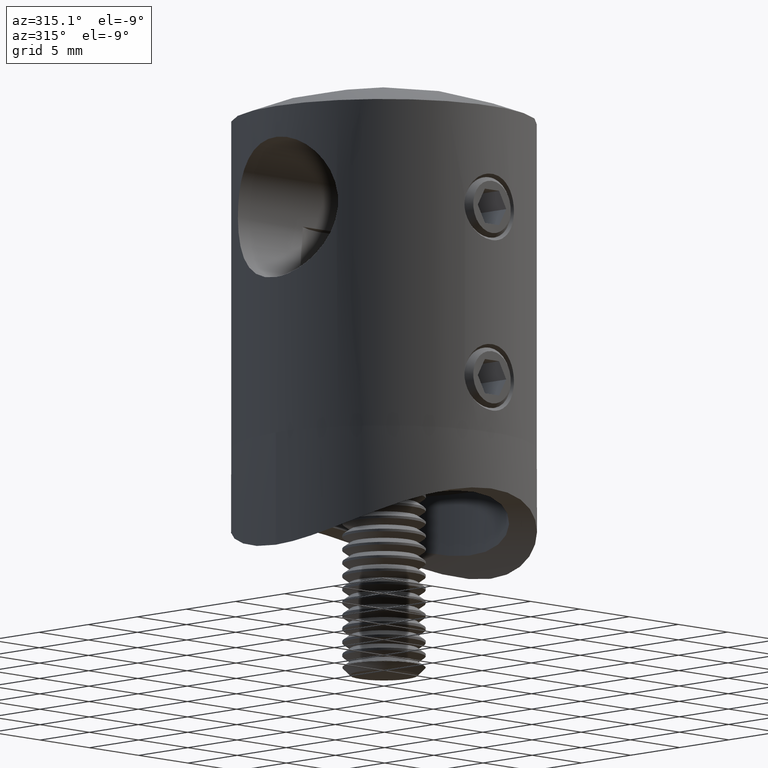
[diagram: clean part render]
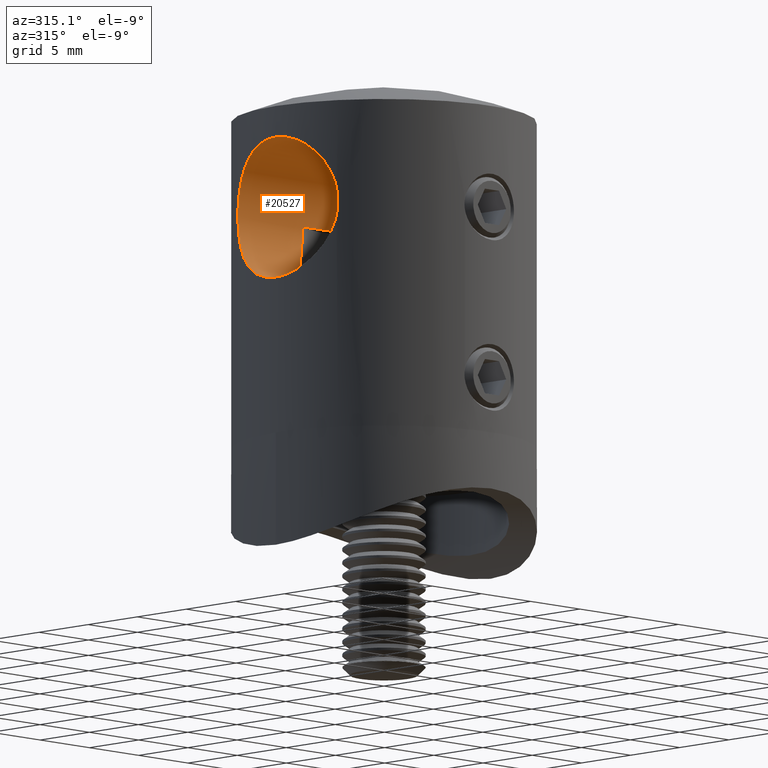
[diagram: same view with one face highlighted and labeled with its STEP entity id]
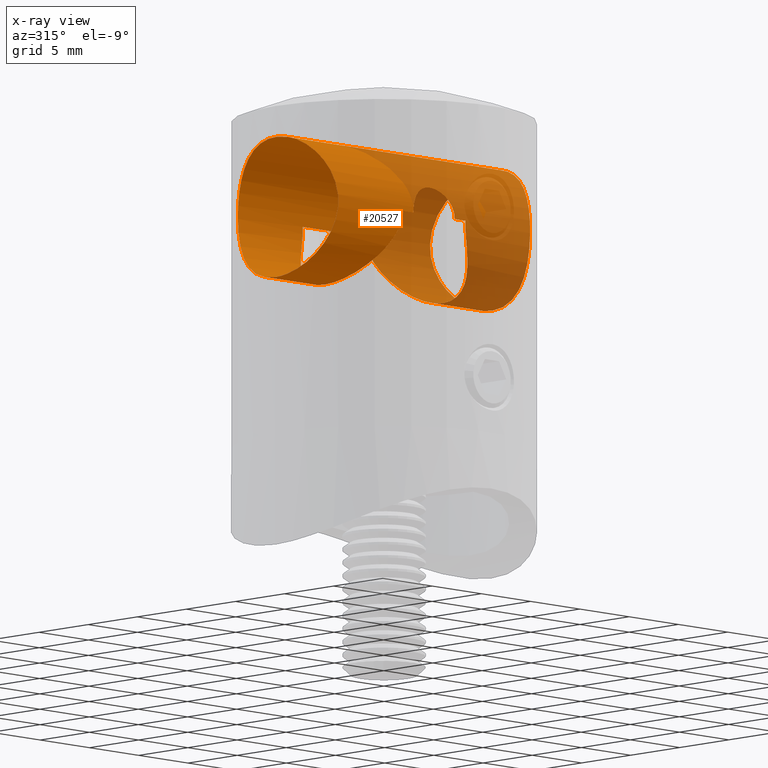
[diagram: x-ray of the same camera — body ghosted, the highlighted face saturated]
A machine part, auxiliary view. The second image highlights one B-rep face of the part: STEP entity #20527.
The next image is the same camera in x-ray: the body ghosted, the highlighted face saturated — about 45% of this face is hidden behind the body in this view.
In plain terms, the highlighted cylindrical surface (bore or boss wall) has radius 5.1 mm, axis along (1, 0, 0).
Its self-contained STEP definition (entity closure, byte-faithful):
#35 = CARTESIAN_POINT ( 'NONE',  ( -10.99999999999999600, 1.897353801849632800E-016, 11.29999999999999900 ) ) ;
#37 = CARTESIAN_POINT ( 'NONE',  ( 10.00436061697043800, -4.575241178648823000, 14.12254123351116800 ) ) ;
#113 = CARTESIAN_POINT ( 'NONE',  ( -9.746609327651651000, 5.099373206684540500, 16.05260251348449400 ) ) ;
#191 = CARTESIAN_POINT ( 'NONE',  ( 10.92358240342935700, -1.335907363905573600, 11.46663083745702500 ) ) ;
#342 = CARTESIAN_POINT ( 'NONE',  ( -10.69790093024884900, 2.576078500588504300, 20.81407917215977200 ) ) ;
#344 = CARTESIAN_POINT ( 'NONE',  ( 10.55128804721513100, 3.122534710036636100, 12.35424311392541900 ) ) ;
#419 = CARTESIAN_POINT ( 'NONE',  ( -10.47336877759368400, -3.371864480480711200, 20.24047110347593300 ) ) ;
#421 = CARTESIAN_POINT ( 'NONE',  ( 10.31158215273080500, 3.838254438372356200, 19.77438753519447800 ) ) ;
#491 = CARTESIAN_POINT ( 'NONE',  ( -9.763479344190180600, -5.067548827356644900, 15.73283853468677900 ) ) ;
#528 = CARTESIAN_POINT ( 'NONE',  ( -0.5499645270193673800, -4.678043745141827100, 18.43145284121799300 ) ) ;
#535 = FACE_OUTER_BOUND ( 'NONE', #658, .T. ) ;
#564 = CARTESIAN_POINT ( 'NONE',  ( -10.07469812271536100, -4.420400662356025900, 13.83512119538369900 ) ) ;
#567 = CARTESIAN_POINT ( 'NONE',  ( 10.07469812271536800, 4.420400662356026800, 13.83512119538370500 ) ) ;
#647 = CARTESIAN_POINT ( 'NONE',  ( 10.70022606909253500, 2.566238421094041200, 20.81964023380006900 ) ) ;
#658 = EDGE_LOOP ( 'NONE', ( #16135 ) ) ;
#680 = CARTESIAN_POINT ( 'NONE',  ( -1.057273844684883900, -4.765066672476101500, 18.21951307096723100 ) ) ;
#829 = CARTESIAN_POINT ( 'NONE',  ( -0.9353544019367214800, -4.739117432188014500, 18.28521745748624400 ) ) ;
#944 = CARTESIAN_POINT ( 'NONE',  ( -3.437899923984606400, -4.919077726535473300, 15.00999836244040100 ) ) ;
#1080 = CARTESIAN_POINT ( 'NONE',  ( 5.526712704781847000, -2.359354324370696300, 11.86563484534943500 ) ) ;
#1156 = CARTESIAN_POINT ( 'NONE',  ( 3.160696125855821500, 5.100000000000001400, 16.39999999999999900 ) ) ;
#1227 = CARTESIAN_POINT ( 'NONE',  ( 5.750816287354224300, 1.743401258066523000, 11.59501410306202000 ) ) ;
#1296 = CARTESIAN_POINT ( 'NONE',  ( 5.961137178804953900, -0.7048313270236067400, 11.34576889506183600 ) ) ;
#1368 = CARTESIAN_POINT ( 'NONE',  ( -3.236073373752399900, 5.052629025252485000, 15.68421491420723000 ) ) ;
#1547 = CARTESIAN_POINT ( 'NONE',  ( 2.099999999999993400, -5.100000000000001400, 16.39999999999999900 ) ) ;
#1775 = CARTESIAN_POINT ( 'NONE',  ( 10.98409477427311900, -0.6774680798639226600, 11.33405321981837200 ) ) ;
#1836 = CARTESIAN_POINT ( 'NONE',  ( -9.885833756099657400, 4.824245512483266800, 14.73718638957849000 ) ) ;
#1908 = CARTESIAN_POINT ( 'NONE',  ( 10.76607921010692700, -2.278039284623406800, 11.82485560310605500 ) ) ;
#1990 = CARTESIAN_POINT ( 'NONE',  ( -10.98461965845903200, -0.6696594642287685400, 21.46708344749502100 ) ) ;
#2063 = CARTESIAN_POINT ( 'NONE',  ( -10.07530021768211400, 4.419092927928359100, 13.83261717824195000 ) ) ;
#2065 = CARTESIAN_POINT ( 'NONE',  ( 11.00031598307091900, 0.3266202780843043800, 21.50068153325095100 ) ) ;
#2133 = CARTESIAN_POINT ( 'NONE',  ( -9.745983956010393400, -5.100568316517894600, 16.07184845647866600 ) ) ;
#2135 = CARTESIAN_POINT ( 'NONE',  ( 10.47336877759368300, 3.371864480480710300, 20.24047110347592900 ) ) ;
#2211 = CARTESIAN_POINT ( 'NONE',  ( -9.782123209470828600, -5.031053208532882500, 17.25264343705779500 ) ) ;
#2250 = CARTESIAN_POINT ( 'NONE',  ( 2.099999999999997400, -5.100000000000001400, 16.53877706391702400 ) ) ;
#2265 = DIRECTION ( 'NONE',  ( 0.0000000000000000000, 0.0000000000000000000, -1.000000000000000000 ) ) ;
#2287 = CARTESIAN_POINT ( 'NONE',  ( -10.55128804721514000, -3.122534710036641400, 12.35424311392542600 ) ) ;
#2427 = CARTESIAN_POINT ( 'NONE',  ( -10.76247523156004800, -2.278529707840948800, 11.83425253284901800 ) ) ;
#2578 = CARTESIAN_POINT ( 'NONE',  ( -3.160696125855821500, -5.100000000000001400, 16.39999999999999900 ) ) ;
#2727 = CARTESIAN_POINT ( 'NONE',  ( -5.961137178804953900, 0.7048313270236067400, 11.34576889506183600 ) ) ;
#2744 = B_SPLINE_CURVE_WITH_KNOTS ( 'NONE', 3,
 ( #5255, #13844, #1775, #191, #3627, #1908, #15564, #15348, #5109, #13775, #17007, #22161, #37, #15416, #5323, #5190, #18853, #13918, #20565, #3553, #17301, #8760, #20725, #18700, #8465, #19144, #10615, #17668, #12262, #7427, #3919, #5627, #8838, #3694, #9055, #21033, #15875, #2065, #10769, #15795, #3850, #19365, #647, #10840, #2135, #421, #7355, #8916, #5483, #20877, #3989, #19215, #17373, #15641, #12343, #14063, #5404, #5554, #19290, #12559, #567, #17530, #5709, #13996, #344, #21099, #15950, #7273, #3768, #15715, #8990, #20955, #9139, #12489 ),
 .UNSPECIFIED., .T., .F.,
 ( 4, 2, 2, 2, 2, 2, 2, 2, 2, 2, 2, 2, 2, 2, 2, 2, 2, 2, 2, 2, 2, 2, 2, 2, 2, 2, 2, 2, 2, 2, 2, 2, 2, 2, 2, 2, 4 ),
 ( 0.0000000000000000000, 0.001010597652588617900, 0.002021195305177235400, 0.003031792957765852900, 0.004042390610354470000, 0.005052988262943087000, 0.006063585915531705800, 0.006568884741826014300, 0.007074183568120321100, 0.008084781220708941700, 0.008590080047003246700, 0.009095378873297553500, 0.01010597652588616200, 0.01111657417847477400, 0.01212717183106338400, 0.01313776948365199600, 0.01414836713624060600, 0.01515896478882921400, 0.01616956244141782400, 0.01718016009400643800, 0.01819075774659504800, 0.01920135539918365800, 0.02021195305177226800, 0.02122255070436087800, 0.02223314835694948900, 0.02324374600953810200, 0.02374904483583240700, 0.02425434366212671200, 0.02526494131471532200, 0.02627553896730392600, 0.02728613661989253200, 0.02829673427248113200, 0.02930733192506973500, 0.02981263075136404000, 0.03031792957765834200, 0.03132852723024694800, 0.03233912488283555800 ),
 .UNSPECIFIED. ) ;
#2792 = CARTESIAN_POINT ( 'NONE',  ( 4.072506689530409400, -4.413100678718776300, 13.82454396794957000 ) ) ;
#2928 = CARTESIAN_POINT ( 'NONE',  ( -4.930883832659188400, 3.429680394446590800, 12.61241110340417000 ) ) ;
#3006 = CARTESIAN_POINT ( 'NONE',  ( 4.420797845977277000, -4.064149940858574600, 13.30304720220789800 ) ) ;
#3473 = CARTESIAN_POINT ( 'NONE',  ( -10.98409477427311600, 0.6774680798639229900, 11.33405321981837200 ) ) ;
#3551 = CARTESIAN_POINT ( 'NONE',  ( -9.913515838807221300, 4.767307365066429300, 14.58060640433452400 ) ) ;
#3553 = CARTESIAN_POINT ( 'NONE',  ( 9.746124043521531300, -5.100300603888076300, 16.55970841759690500 ) ) ;
#3624 = CARTESIAN_POINT ( 'NONE',  ( -10.47088620841679000, 3.379449766977663300, 20.23365674153711100 ) ) ;
#3627 = CARTESIAN_POINT ( 'NONE',  ( 10.87817437663434800, -1.662301648955468900, 11.56697170889746400 ) ) ;
#3692 = CARTESIAN_POINT ( 'NONE',  ( -9.831210612696358100, 4.934853384125918100, 17.73043615380184000 ) ) ;
#3694 = CARTESIAN_POINT ( 'NONE',  ( 10.87691252494812000, -1.670145597579503900, 21.23017820595980300 ) ) ;
#3698 = DIRECTION ( 'NONE',  ( -1.000000000000000000, 0.0000000000000000000, 0.0000000000000000000 ) ) ;
#3768 = CARTESIAN_POINT ( 'NONE',  ( 10.79372047998855600, 2.126081526392296100, 11.76127184379781300 ) ) ;
#3848 = CARTESIAN_POINT ( 'NONE',  ( -9.750955816283152400, -5.091093399825953500, 16.74569809806016000 ) ) ;
#3850 = CARTESIAN_POINT ( 'NONE',  ( 10.87989800168600500, 1.651396176960097800, 21.23691135796434500 ) ) ;
#3919 = CARTESIAN_POINT ( 'NONE',  ( 10.55011019610968500, -3.126729857943598500, 20.44275101567398400 ) ) ;
#3951 = CARTESIAN_POINT ( 'NONE',  ( -1.282894273576390000, -4.820150425833494600, 18.06812412035203900 ) ) ;
#3987 = CARTESIAN_POINT ( 'NONE',  ( -10.98362801482573100, -0.6851161954445393900, 11.33505918355280800 ) ) ;
#3989 = CARTESIAN_POINT ( 'NONE',  ( 9.833678025644266200, 4.929959429588495600, 17.74888431453495100 ) ) ;
#4033 = EDGE_CURVE ( 'NONE', #4950, #19914, #18998, .T. ) ;
#4057 = VERTEX_POINT ( 'NONE', #16353 ) ;
#4248 = CARTESIAN_POINT ( 'NONE',  ( 1.883934411382665500, -5.014655641459837600, 17.33809115779621000 ) ) ;
#4287 = CARTESIAN_POINT ( 'NONE',  ( -3.224345162553830000, -5.061628180708900100, 15.68631211838138200 ) ) ;
#4566 = CARTESIAN_POINT ( 'NONE',  ( 5.094334937987475200, -3.184645687778531200, 12.40313220269684200 ) ) ;
#4568 = CARTESIAN_POINT ( 'NONE',  ( -3.160696125855820600, 5.100000000000000500, 16.21838618592478600 ) ) ;
#4612 = EDGE_CURVE ( 'NONE', #15043, #11993, #18530, .T. ) ;
#4643 = CARTESIAN_POINT ( 'NONE',  ( 3.662736925341414800, -4.753370674297174000, 14.54497055375999000 ) ) ;
#4646 = CARTESIAN_POINT ( 'NONE',  ( -3.899298338505512900, 4.564665450330344300, 14.10293722739147500 ) ) ;
#4716 = CARTESIAN_POINT ( 'NONE',  ( 3.279023719471608500, -5.025144788923042500, 15.51269972870959700 ) ) ;
#4718 = CARTESIAN_POINT ( 'NONE',  ( -5.935100455611847200, -0.8973519367980685700, 11.37647445812125600 ) ) ;
#4776 = FACE_OUTER_BOUND ( 'NONE', #19343, .T. ) ;
#4784 = CARTESIAN_POINT ( 'NONE',  ( 6.007905056298978000, 0.007331184701876530100, 11.29070721246142900 ) ) ;
#4950 = VERTEX_POINT ( 'NONE', #9027 ) ;
#4985 = ORIENTED_EDGE ( 'NONE', *, *, #14041, .F. ) ;
#5107 = CARTESIAN_POINT ( 'NONE',  ( -10.47192994644006200, 3.376204713791207900, 12.56352283884599100 ) ) ;
#5109 = CARTESIAN_POINT ( 'NONE',  ( 10.47192994644006200, -3.376204713791206100, 12.56352283884598900 ) ) ;
#5186 = CARTESIAN_POINT ( 'NONE',  ( -10.30987621817060400, 3.842732241926132300, 19.76912654204614500 ) ) ;
#5190 = CARTESIAN_POINT ( 'NONE',  ( 9.836864287762125500, -4.923327614744372300, 15.05868010317692600 ) ) ;
#5202 = ORIENTED_EDGE ( 'NONE', *, *, #14855, .F. ) ;
#5255 = CARTESIAN_POINT ( 'NONE',  ( 11.00000000000000000, -1.084202172485504400E-016, 11.29999999999999900 ) ) ;
#5321 = CARTESIAN_POINT ( 'NONE',  ( -10.87691252494811600, 1.670145597579503200, 21.23017820595980600 ) ) ;
#5323 = CARTESIAN_POINT ( 'NONE',  ( 9.885833756099659200, -4.824245512483267700, 14.73718638957849000 ) ) ;
#5404 = CARTESIAN_POINT ( 'NONE',  ( 9.763479344190173500, 5.067548827356644900, 15.73283853468677900 ) ) ;
#5483 = CARTESIAN_POINT ( 'NONE',  ( 10.00459041982638700, 4.574747880705968100, 18.67853826946136000 ) ) ;
#5552 = CARTESIAN_POINT ( 'NONE',  ( -10.79372047998855100, -2.126081526392301400, 11.76127184379781600 ) ) ;
#5554 = CARTESIAN_POINT ( 'NONE',  ( 9.831401816782660700, 4.934482580680001900, 15.06731954339826500 ) ) ;
#5586 = CARTESIAN_POINT ( 'NONE',  ( -1.819250232706703900, -4.990455248181885600, 17.45772812533541100 ) ) ;
#5627 = CARTESIAN_POINT ( 'NONE',  ( 10.69790093024885600, -2.576078500588502500, 20.81407917215978300 ) ) ;
#5657 = VECTOR ( 'NONE', #10866, 1000.000000000000000 ) ;
#5669 = CARTESIAN_POINT ( 'NONE',  ( 1.387084436713889700, -4.849290995718870800, 17.98253608266233500 ) ) ;
#5709 = CARTESIAN_POINT ( 'NONE',  ( 10.30907895527403500, 3.845060912577607400, 13.03314621997213000 ) ) ;
#5780 = CARTESIAN_POINT ( 'NONE',  ( -10.76752374769291600, -2.271502190894517900, 20.97854765344256100 ) ) ;
#5781 = CARTESIAN_POINT ( 'NONE',  ( -4.589665673809800900, -3.874484500163802200, 13.06871005281209900 ) ) ;
#5886 = CARTESIAN_POINT ( 'NONE',  ( -2.085936282127814700, -5.094163894485191700, 16.67929288906941600 ) ) ;
#5973 = CARTESIAN_POINT ( 'NONE',  ( 11.00000000000000000, 0.0000000000000000000, 11.29999999999999700 ) ) ;
#6142 = CARTESIAN_POINT ( 'NONE',  ( -5.959378708157824900, -0.7195634073048298200, 11.34784246777162200 ) ) ;
#6214 = CARTESIAN_POINT ( 'NONE',  ( -3.587536456729938400, 4.810083889045049700, 14.69690675221483800 ) ) ;
#6351 = CARTESIAN_POINT ( 'NONE',  ( -5.937279120420515500, 0.8828896206105536500, 11.37390155145837900 ) ) ;
#6435 = VERTEX_POINT ( 'NONE', #16450 ) ;
#6750 = CARTESIAN_POINT ( 'NONE',  ( -11.00000000000000000, -5.100000000000001400, 16.39999999999999900 ) ) ;
#6893 = LINE ( 'NONE', #6750, #10356 ) ;
#6895 = CARTESIAN_POINT ( 'NONE',  ( -9.764554807653102100, 5.065479761543580900, 15.71864772819509100 ) ) ;
#7048 = CARTESIAN_POINT ( 'NONE',  ( -10.99967404411871300, 0.3475679165322346200, 21.49929695674811800 ) ) ;
#7120 = CARTESIAN_POINT ( 'NONE',  ( -10.92358240342935500, 1.335907363905573600, 11.46663083745702000 ) ) ;
#7273 = CARTESIAN_POINT ( 'NONE',  ( 10.76247523156004400, 2.278529707840944300, 11.83425253284901400 ) ) ;
#7351 = CARTESIAN_POINT ( 'NONE',  ( -9.768733347336896200, -5.056898271221757400, 17.08302200203814900 ) ) ;
#7355 = CARTESIAN_POINT ( 'NONE',  ( 10.23062083369497800, 4.046496105150160000, 19.52160426523856900 ) ) ;
#7426 = CARTESIAN_POINT ( 'NONE',  ( -10.00222700330179200, -4.579911297734634300, 14.13158646250897700 ) ) ;
#7427 = CARTESIAN_POINT ( 'NONE',  ( 10.47088620841679000, -3.379449766977662900, 20.23365674153711100 ) ) ;
#7456 = CARTESIAN_POINT ( 'NONE',  ( 1.579266909651706500, -4.907718808011222400, 17.79080541974112300 ) ) ;
#7488 = CARTESIAN_POINT ( 'NONE',  ( -10.99999999999999800, -0.3420402686100491000, 11.29999999999999900 ) ) ;
#7489 = CARTESIAN_POINT ( 'NONE',  ( -5.091321507266846100, -3.189219774148147800, 12.40698860909554400 ) ) ;
#7534 = CARTESIAN_POINT ( 'NONE',  ( -1.991049611346070500, -5.055877295416569200, 17.08161594402441700 ) ) ;
#7604 = CARTESIAN_POINT ( 'NONE',  ( -11.00000000000000000, -5.100000000000001400, 16.39999999999999900 ) ) ;
#7611 = CARTESIAN_POINT ( 'NONE',  ( -2.099999999999993400, -5.100000000000001400, 16.39999999999999900 ) ) ;
#7790 = CARTESIAN_POINT ( 'NONE',  ( -3.896672037690059700, -4.566915886893900400, 14.10728764135303600 ) ) ;
#7929 = CARTESIAN_POINT ( 'NONE',  ( 3.896672037690059700, 4.566915886893900400, 14.10728764135303600 ) ) ;
#7931 = CARTESIAN_POINT ( 'NONE',  ( -5.754041743160549100, 1.732659737827856500, 11.59116329903517700 ) ) ;
#8001 = CARTESIAN_POINT ( 'NONE',  ( 5.991650558390248600, 0.3634414265308563700, 11.30981556748035800 ) ) ;
#8081 = CARTESIAN_POINT ( 'NONE',  ( 4.415955492431838700, 4.069282658997688700, 13.31003616340318800 ) ) ;
#8156 = CARTESIAN_POINT ( 'NONE',  ( -4.594853628076902100, 3.868286845074914800, 13.06160305806997900 ) ) ;
#8465 = CARTESIAN_POINT ( 'NONE',  ( 9.880785821988753900, -4.836366772746158600, 18.05286453897976900 ) ) ;
#8534 = CARTESIAN_POINT ( 'NONE',  ( -10.92203846952601900, 1.349500825788746900, 21.32996568247475400 ) ) ;
#8758 = CARTESIAN_POINT ( 'NONE',  ( -9.836864287762120200, 4.923327614744370500, 15.05868010317692900 ) ) ;
#8760 = CARTESIAN_POINT ( 'NONE',  ( 9.767782344364496400, -5.058733202320076400, 17.06944071582966400 ) ) ;
#8779 = LINE ( 'NONE', #13848, #19223 ) ;
#8836 = CARTESIAN_POINT ( 'NONE',  ( -10.31115410062419500, 3.839293709232861000, 13.02699850404312800 ) ) ;
#8838 = CARTESIAN_POINT ( 'NONE',  ( 10.76524624909549400, -2.281684813646024600, 20.97317419629084500 ) ) ;
#8916 = CARTESIAN_POINT ( 'NONE',  ( 10.07729814196231300, 4.414498332747689000, 18.97502395870773400 ) ) ;
#8990 = CARTESIAN_POINT ( 'NONE',  ( 10.92259533598678600, 1.344016255707064300, 11.46881049038183600 ) ) ;
#9020 = CARTESIAN_POINT ( 'NONE',  ( -0.2778367829370683200, -4.653904337052252600, 18.48616115128229600 ) ) ;
#9027 = CARTESIAN_POINT ( 'NONE',  ( -3.160696125855821500, -5.100000000000001400, 16.39999999999999900 ) ) ;
#9053 = CARTESIAN_POINT ( 'NONE',  ( -9.833678025644271500, -4.929959429588498300, 17.74888431453494800 ) ) ;
#9055 = CARTESIAN_POINT ( 'NONE',  ( 10.92203846952602400, -1.349500825788743100, 21.32996568247476800 ) ) ;
#9139 = CARTESIAN_POINT ( 'NONE',  ( 11.00000000000000200, 0.3420402686100437200, 11.29999999999999700 ) ) ;
#9178 = CARTESIAN_POINT ( 'NONE',  ( 2.085895283018009300, -5.094147339973454300, 16.67947763425767600 ) ) ;
#9250 = CARTESIAN_POINT ( 'NONE',  ( 1.282574519783476400, -4.820053978204491300, 18.06841653816547600 ) ) ;
#9626 = CARTESIAN_POINT ( 'NONE',  ( 5.754041743160549100, -1.732659737827856500, 11.59116329903517700 ) ) ;
#9628 = CARTESIAN_POINT ( 'NONE',  ( -5.992521419472591800, 0.3487559336365772000, 11.30879105119112500 ) ) ;
#9640 = VERTEX_POINT ( 'NONE', #5973 ) ;
#9704 = CARTESIAN_POINT ( 'NONE',  ( 5.935100455611847200, 0.8973519367980685700, 11.37647445812125600 ) ) ;
#9781 = CARTESIAN_POINT ( 'NONE',  ( 5.522045992001460000, 2.370304617501131500, 11.87131438089884300 ) ) ;
#9783 = CARTESIAN_POINT ( 'NONE',  ( -4.420797845977277000, 4.064149940858574600, 13.30304720220789800 ) ) ;
#9854 = CARTESIAN_POINT ( 'NONE',  ( -3.279023719471608500, 5.025144788923042500, 15.51269972870959700 ) ) ;
#10142 = CARTESIAN_POINT ( 'NONE',  ( 3.160696125855820600, -5.100000000000000500, 16.21838618592478600 ) ) ;
#10318 = CARTESIAN_POINT ( 'NONE',  ( -9.815636342375487500, 4.965348642925768300, 15.22371585600222100 ) ) ;
#10356 = VECTOR ( 'NONE', #15190, 1000.000000000000000 ) ;
#10546 = CARTESIAN_POINT ( 'NONE',  ( -10.22938670084714000, 4.049654862654770100, 13.28228732040598100 ) ) ;
#10615 = CARTESIAN_POINT ( 'NONE',  ( 10.07413874253476000, -4.421680918401317100, 18.96272170532579100 ) ) ;
#10725 = AXIS2_PLACEMENT_3D ( 'NONE', #19344, #19122, #2265 ) ;
#10766 = CARTESIAN_POINT ( 'NONE',  ( -10.31158215273080500, -3.838254438372356200, 19.77438753519448200 ) ) ;
#10769 = CARTESIAN_POINT ( 'NONE',  ( 10.98461965845903200, 0.6696594642287665400, 21.46708344749500700 ) ) ;
#10803 = CARTESIAN_POINT ( 'NONE',  ( -1.388486849246764400, -4.849682484477904500, 17.98138912493051200 ) ) ;
#10840 = CARTESIAN_POINT ( 'NONE',  ( 10.55378527435345500, 3.114166653605242800, 20.45225437055679100 ) ) ;
#10866 = DIRECTION ( 'NONE',  ( 1.000000000000000000, -0.0000000000000000000, -0.0000000000000000000 ) ) ;
#10872 = CARTESIAN_POINT ( 'NONE',  ( -0.1376236150479603900, -4.647562775263992300, 18.50003815482978500 ) ) ;
#10943 = CARTESIAN_POINT ( 'NONE',  ( -0.6813671313963254300, -4.695594461470578000, 18.39114829972205100 ) ) ;
#11024 = CARTESIAN_POINT ( 'NONE',  ( 0.2769901658140820900, -4.647614604758041800, 18.49992344924319100 ) ) ;
#11131 = CARTESIAN_POINT ( 'NONE',  ( -3.160696125855821500, -5.100000000000000500, 16.03670030206456000 ) ) ;
#11278 = CARTESIAN_POINT ( 'NONE',  ( 5.091321507266846100, 3.189219774148147800, 12.40698860909554400 ) ) ;
#11281 = CARTESIAN_POINT ( 'NONE',  ( -5.392728365209467100, 2.648149806214045400, 12.02916221421408600 ) ) ;
#11351 = CARTESIAN_POINT ( 'NONE',  ( -3.160696125855821500, 5.100000000000001400, 16.39999999999999900 ) ) ;
#11414 = CARTESIAN_POINT ( 'NONE',  ( -3.448880571870624600, 4.910452896524973600, 15.01259739754040400 ) ) ;
#11491 = CARTESIAN_POINT ( 'NONE',  ( 5.992521419472591800, -0.3487559336365772000, 11.30879105119112500 ) ) ;
#11572 = CARTESIAN_POINT ( 'NONE',  ( 4.926986027419904000, 3.435326742096961100, 12.61745416032030000 ) ) ;
#11993 = VERTEX_POINT ( 'NONE', #20039 ) ;
#12032 = CARTESIAN_POINT ( 'NONE',  ( -10.55213191267872700, 3.119896509840596200, 12.35200189701629700 ) ) ;
#12048 = VERTEX_POINT ( 'NONE', #1547 ) ;
#12054 = EDGE_CURVE ( 'NONE', #4057, #4057, #20006, .T. ) ;
#12111 = CARTESIAN_POINT ( 'NONE',  ( -9.750431221126522300, 5.092096281612858100, 16.73088962366718100 ) ) ;
#12183 = CARTESIAN_POINT ( 'NONE',  ( -10.69954747067740900, 2.569226743090020600, 11.98195554385582900 ) ) ;
#12262 = CARTESIAN_POINT ( 'NONE',  ( 10.30987621817060100, -3.842732241926132300, 19.76912654204613400 ) ) ;
#12341 = CARTESIAN_POINT ( 'NONE',  ( -10.23062083369498000, -4.046496105150158200, 19.52160426523857600 ) ) ;
#12343 = CARTESIAN_POINT ( 'NONE',  ( 9.746435882187439500, 5.099704667917422700, 16.57715091522957400 ) ) ;
#12486 = CARTESIAN_POINT ( 'NONE',  ( -9.883215163198309800, -4.831377203079143500, 18.06668807489311500 ) ) ;
#12489 = CARTESIAN_POINT ( 'NONE',  ( 11.00000000000000000, -1.084202172485504400E-016, 11.29999999999999900 ) ) ;
#12559 = CARTESIAN_POINT ( 'NONE',  ( 10.00222700330179600, 4.579911297734634300, 14.13158646250898800 ) ) ;
#12678 = CARTESIAN_POINT ( 'NONE',  ( -2.031277605772814400, -5.072027634239925800, 16.95049612102884900 ) ) ;
#12750 = CARTESIAN_POINT ( 'NONE',  ( -1.581784412795938600, -4.908519776703030900, 17.78803651479905000 ) ) ;
#12854 = CARTESIAN_POINT ( 'NONE',  ( -3.580811593932919900, -4.818564310667141200, 14.69862154080247400 ) ) ;
#12932 = CARTESIAN_POINT ( 'NONE',  ( -4.070385370908269400, -4.414939093832910700, 13.82798703968248900 ) ) ;
#12997 = CARTESIAN_POINT ( 'NONE',  ( 4.594853628076902100, -3.868286845074914800, 13.06160305806997900 ) ) ;
#12999 = CARTESIAN_POINT ( 'NONE',  ( -5.522045992001460000, -2.370304617501131500, 11.87131438089884300 ) ) ;
#13067 = CARTESIAN_POINT ( 'NONE',  ( 5.392728365209467100, -2.648149806214045400, 12.02916221421408600 ) ) ;
#13154 = CARTESIAN_POINT ( 'NONE',  ( -5.841456572235876400, -1.414219495481199500, 11.48734484294548600 ) ) ;
#13228 = CARTESIAN_POINT ( 'NONE',  ( 5.844685562798253500, -1.400985515938927300, 11.48350954739190200 ) ) ;
#13612 = FACE_BOUND ( 'NONE', #19659, .T. ) ;
#13775 = CARTESIAN_POINT ( 'NONE',  ( 10.31115410062419500, -3.839293709232858300, 13.02699850404312400 ) ) ;
#13842 = CARTESIAN_POINT ( 'NONE',  ( -10.07413874253476000, 4.421680918401315300, 18.96272170532579100 ) ) ;
#13844 = CARTESIAN_POINT ( 'NONE',  ( 11.00000000000000000, -0.3420402686100476000, 11.30000000000000100 ) ) ;
#13848 = CARTESIAN_POINT ( 'NONE',  ( -11.00000000000000000, 5.100000000000001400, 16.39999999999999900 ) ) ;
#13916 = CARTESIAN_POINT ( 'NONE',  ( -10.92420653231054900, -1.331174097726975900, 21.33474963736254500 ) ) ;
#13918 = CARTESIAN_POINT ( 'NONE',  ( 9.764554807653103900, -5.065479761543580900, 15.71864772819508700 ) ) ;
#13993 = CARTESIAN_POINT ( 'NONE',  ( -10.00436061697045000, 4.575241178648824700, 14.12254123351117700 ) ) ;
#13996 = CARTESIAN_POINT ( 'NONE',  ( 10.47201491691117100, 3.376167339972384200, 12.56311429802452300 ) ) ;
#14041 = EDGE_CURVE ( 'NONE', #12048, #11993, #6893, .T. ) ;
#14061 = CARTESIAN_POINT ( 'NONE',  ( -9.880766135392452300, -4.836382232452141500, 14.74751872209966700 ) ) ;
#14063 = CARTESIAN_POINT ( 'NONE',  ( 9.745983956010393400, 5.100568316517894600, 16.07184845647866600 ) ) ;
#14172 = CARTESIAN_POINT ( 'NONE',  ( 0.5560579517119971200, -4.674142014470731100, 18.44335116316176500 ) ) ;
#14212 = CARTESIAN_POINT ( 'NONE',  ( -10.69623310193279800, -2.571608090004069900, 11.99266754206867500 ) ) ;
#14248 = CARTESIAN_POINT ( 'NONE',  ( -1.667785240523931700, -4.937254275750055000, 17.68333650607293000 ) ) ;
#14360 = CARTESIAN_POINT ( 'NONE',  ( -9.831401816782660700, -4.934482580680002800, 15.06731954339825900 ) ) ;
#14649 = CARTESIAN_POINT ( 'NONE',  ( -5.844685562798253500, 1.400985515938927300, 11.48350954739190200 ) ) ;
#14797 = CARTESIAN_POINT ( 'NONE',  ( 5.841456572235876400, 1.414219495481199500, 11.48734484294548600 ) ) ;
#14855 = EDGE_CURVE ( 'NONE', #9640, #9640, #2744, .T. ) ;
#14872 = CARTESIAN_POINT ( 'NONE',  ( 3.899298338505512900, -4.564665450330344300, 14.10293722739147500 ) ) ;
#14944 = CARTESIAN_POINT ( 'NONE',  ( 3.385219306525883500, -4.954227179815460700, 15.17729195150674400 ) ) ;
#15021 = CARTESIAN_POINT ( 'NONE',  ( 4.070385370908269400, 4.414939093832910700, 13.82798703968248900 ) ) ;
#15043 = VERTEX_POINT ( 'NONE', #19585 ) ;
#15059 = EDGE_CURVE ( 'NONE', #4950, #6435, #15324, .T. ) ;
#15190 = DIRECTION ( 'NONE',  ( 1.000000000000000000, -0.0000000000000000000, -0.0000000000000000000 ) ) ;
#15324 = B_SPLINE_CURVE_WITH_KNOTS ( 'NONE', 3,
 ( #2578, #11131, #4287, #944, #12854, #7790, #12932, #16014, #5781, #17749, #7489, #16385, #12999, #20097, #13154, #4718, #6142, #18159, #20016, #9628, #2727, #6351, #14649, #7931, #16598, #11281, #21675, #2928, #8156, #9783, #21538, #4646, #18239, #6214, #11414, #19871, #9854, #1368, #16519, #4568, #11351 ),
 .UNSPECIFIED., .F., .F.,
 ( 4, 2, 2, 2, 2, 2, 2, 2, 2, 1, 2, 2, 2, 2, 2, 2, 2, 2, 2, 2, 4 ),
 ( 0.0000000000000000000, 0.001071220141085162500, 0.002142440282170325100, 0.003213660423255487200, 0.004284880564340650200, 0.005356100705425813200, 0.006427320846510976200, 0.007498540987596139100, 0.008034151058138721100, 0.008569761128681303900, 0.009105371199223884900, 0.009640981269766464200, 0.01071220141085162800, 0.01178342155193679200, 0.01285464169302195600, 0.01392586183410712100, 0.01499708197519228500, 0.01553269204573486800, 0.01606830211627745300, 0.01660391218682003400, 0.01713952225736261800 ),
 .UNSPECIFIED. ) ;
#15348 = CARTESIAN_POINT ( 'NONE',  ( 10.55213191267872500, -3.119896509840596200, 12.35200189701630300 ) ) ;
#15414 = CARTESIAN_POINT ( 'NONE',  ( -9.780729526921806600, 5.033756045906779200, 17.23636692954555400 ) ) ;
#15416 = CARTESIAN_POINT ( 'NONE',  ( 9.913515838807216000, -4.767307365066426600, 14.58060640433451600 ) ) ;
#15524 = ORIENTED_EDGE ( 'NONE', *, *, #4612, .T. ) ;
#15562 = CARTESIAN_POINT ( 'NONE',  ( -10.55011019610969000, 3.126729857943599800, 20.44275101567399100 ) ) ;
#15564 = CARTESIAN_POINT ( 'NONE',  ( 10.69954747067740900, -2.569226743090022400, 11.98195554385583300 ) ) ;
#15641 = CARTESIAN_POINT ( 'NONE',  ( 9.750955816283148900, 5.091093399825955300, 16.74569809806015600 ) ) ;
#15713 = CARTESIAN_POINT ( 'NONE',  ( -10.99999999999999600, 1.897353801849632800E-016, 11.29999999999999900 ) ) ;
#15715 = CARTESIAN_POINT ( 'NONE',  ( 10.87810309732537600, 1.662940417430554000, 11.56712141430042700 ) ) ;
#15772 = ORIENTED_EDGE ( 'NONE', *, *, #4033, .F. ) ;
#15793 = CARTESIAN_POINT ( 'NONE',  ( -10.47201491691116500, -3.376167339972387300, 12.56311429802451800 ) ) ;
#15795 = CARTESIAN_POINT ( 'NONE',  ( 10.92420653231055500, 1.331174097726976100, 21.33474963736256000 ) ) ;
#15872 = CARTESIAN_POINT ( 'NONE',  ( -9.746435882187436000, -5.099704667917423600, 16.57715091522956600 ) ) ;
#15875 = CARTESIAN_POINT ( 'NONE',  ( 10.99967404411871500, -0.3475679165322339000, 21.49929695674811500 ) ) ;
#15910 = CARTESIAN_POINT ( 'NONE',  ( 2.099999999999993400, -5.100000000000001400, 16.39999999999999900 ) ) ;
#15950 = CARTESIAN_POINT ( 'NONE',  ( 10.69623310193278500, 2.571608090004069400, 11.99266754206867200 ) ) ;
#16013 = CARTESIAN_POINT ( 'NONE',  ( -10.00459041982639800, -4.574747880705968900, 18.67853826946137700 ) ) ;
#16014 = CARTESIAN_POINT ( 'NONE',  ( -4.415955492431838700, -4.069282658997688700, 13.31003616340318800 ) ) ;
#16050 = CARTESIAN_POINT ( 'NONE',  ( -2.099999999999993900, -5.100000000000003200, 16.53846294837891100 ) ) ;
#16135 = ORIENTED_EDGE ( 'NONE', *, *, #12054, .F. ) ;
#16353 = CARTESIAN_POINT ( 'NONE',  ( -10.99999999999999800, 0.0000000000000000000, 11.29999999999999700 ) ) ;
#16385 = CARTESIAN_POINT ( 'NONE',  ( -5.387974981389500200, -2.657518214066716400, 12.03504184698020800 ) ) ;
#16450 = CARTESIAN_POINT ( 'NONE',  ( -3.160696125855821500, 5.100000000000001400, 16.39999999999999900 ) ) ;
#16517 = CARTESIAN_POINT ( 'NONE',  ( 4.930883832659188400, -3.429680394446590800, 12.61241110340417000 ) ) ;
#16519 = CARTESIAN_POINT ( 'NONE',  ( -3.176763845537689900, 5.090127937175814100, 16.03667378425232200 ) ) ;
#16596 = CARTESIAN_POINT ( 'NONE',  ( 3.448880571870624600, -4.910452896524973600, 15.01259739754040400 ) ) ;
#16598 = CARTESIAN_POINT ( 'NONE',  ( -5.526712704781847000, 2.359354324370696300, 11.86563484534943500 ) ) ;
#16754 = CARTESIAN_POINT ( 'NONE',  ( 5.937279120420515500, -0.8828896206105536500, 11.37390155145837900 ) ) ;
#17007 = CARTESIAN_POINT ( 'NONE',  ( 10.22938670084714200, -4.049654862654770100, 13.28228732040597700 ) ) ;
#17048 = CARTESIAN_POINT ( 'NONE',  ( 3.160696125855821500, -5.100000000000001400, 16.39999999999999900 ) ) ;
#17073 = CARTESIAN_POINT ( 'NONE',  ( -10.22735391402577100, 4.054721379485367400, 19.51095471163538200 ) ) ;
#17146 = CARTESIAN_POINT ( 'NONE',  ( -10.76524624909549000, 2.281684813646021900, 20.97317419629084200 ) ) ;
#17222 = CARTESIAN_POINT ( 'NONE',  ( -9.746124043521533100, 5.100300603888077200, 16.55970841759691200 ) ) ;
#17299 = CARTESIAN_POINT ( 'NONE',  ( -10.98389058231152000, 0.6828063300958870900, 21.46551967963448200 ) ) ;
#17301 = CARTESIAN_POINT ( 'NONE',  ( 9.750431221126522300, -5.092096281612857200, 16.73088962366718100 ) ) ;
#17328 = EDGE_CURVE ( 'NONE', #12048, #19914, #17385, .T. ) ;
#17371 = CARTESIAN_POINT ( 'NONE',  ( -10.99999999999999600, 0.3420402686100470500, 11.29999999999999900 ) ) ;
#17373 = CARTESIAN_POINT ( 'NONE',  ( 9.768733347336898000, 5.056898271221760100, 17.08302200203814900 ) ) ;
#17385 = B_SPLINE_CURVE_WITH_KNOTS ( 'NONE', 3,
 ( #15910, #2250, #9178, #19399, #17851, #4248, #17781, #19545, #7456, #5669, #9250, #21134, #21290, #14172, #11024, #10872, #9020, #528, #10943, #829, #680, #3951, #10803, #12750, #14248, #5586, #20991, #7534, #12678, #5886, #16050, #7611 ),
 .UNSPECIFIED., .F., .F.,
 ( 4, 2, 2, 2, 2, 2, 2, 2, 2, 2, 2, 2, 2, 2, 2, 4 ),
 ( 0.003321056558782634900, 0.003735839470312533200, 0.004150622381842430600, 0.004565405293372328800, 0.004980188204902227100, 0.005394971116432124500, 0.005809754027962021900, 0.006639319851021814100, 0.007054102762551710600, 0.007468885674081606300, 0.007883668585611501900, 0.008298451497141397600, 0.008713234408671293200, 0.009128017320201188900, 0.009542800231731086300, 0.009957583143260980200 ),
 .UNSPECIFIED. ) ;
#17452 = CARTESIAN_POINT ( 'NONE',  ( -10.55378527435345100, -3.114166653605242800, 20.45225437055679400 ) ) ;
#17528 = CARTESIAN_POINT ( 'NONE',  ( -10.87810309732536700, -1.662940417430558200, 11.56712141430042900 ) ) ;
#17530 = CARTESIAN_POINT ( 'NONE',  ( 10.22777535093213800, 4.053652137328402500, 13.28769383773697400 ) ) ;
#17667 = CARTESIAN_POINT ( 'NONE',  ( -10.07729814196231100, -4.414498332747689900, 18.97502395870773700 ) ) ;
#17668 = CARTESIAN_POINT ( 'NONE',  ( 10.22735391402577700, -4.054721379485370000, 19.51095471163539200 ) ) ;
#17747 = CARTESIAN_POINT ( 'NONE',  ( -10.22777535093213300, -4.053652137328402500, 13.28769383773697000 ) ) ;
#17749 = CARTESIAN_POINT ( 'NONE',  ( -4.926986027419904000, -3.435326742096961100, 12.61745416032030000 ) ) ;
#17781 = CARTESIAN_POINT ( 'NONE',  ( 1.818975609573155700, -4.990352750538118400, 17.45823110984413200 ) ) ;
#17851 = CARTESIAN_POINT ( 'NONE',  ( 1.990916235997843800, -5.055819398949394900, 17.08225832934992300 ) ) ;
#17893 = CYLINDRICAL_SURFACE ( 'NONE', #10725, 5.100000000000000500 ) ;
#18159 = CARTESIAN_POINT ( 'NONE',  ( -5.991650558390248600, -0.3634414265308563700, 11.30981556748035800 ) ) ;
#18236 = CARTESIAN_POINT ( 'NONE',  ( 5.959378708157824900, 0.7195634073048298200, 11.34784246777162200 ) ) ;
#18239 = CARTESIAN_POINT ( 'NONE',  ( -3.662736925341414800, 4.753370674297174000, 14.54497055375999000 ) ) ;
#18309 = CARTESIAN_POINT ( 'NONE',  ( 3.437899923984606400, 4.919077726535473300, 15.00999836244040100 ) ) ;
#18530 = B_SPLINE_CURVE_WITH_KNOTS ( 'NONE', 3,
 ( #1156, #20093, #20014, #18309, #21535, #7929, #15021, #8081, #21833, #11572, #11278, #21673, #9781, #1227, #14797, #9704, #18236, #8001, #4784, #11491, #1296, #16754, #13228, #9626, #1080, #13067, #4566, #16517, #12997, #3006, #2792, #14872, #4643, #19939, #16596, #14944, #4716, #20319, #21905, #10142, #17048 ),
 .UNSPECIFIED., .F., .F.,
 ( 4, 2, 2, 2, 2, 2, 2, 2, 2, 1, 2, 2, 2, 2, 2, 2, 2, 2, 2, 2, 4 ),
 ( 0.0000000000000000000, 0.001071220141085162500, 0.002142440282170325100, 0.003213660423255487200, 0.004284880564340650200, 0.005356100705425813200, 0.006427320846510976200, 0.007498540987596139100, 0.008034151058138721100, 0.008569761128681303900, 0.009105371199223884900, 0.009640981269766464200, 0.01071220141085162800, 0.01178342155193679200, 0.01285464169302195600, 0.01392586183410712100, 0.01499708197519228500, 0.01553269204573486800, 0.01606830211627745300, 0.01660391218682003400, 0.01713952225736261800 ),
 .UNSPECIFIED. ) ;
#18700 = CARTESIAN_POINT ( 'NONE',  ( 9.831210612696356300, -4.934853384125914600, 17.73043615380182200 ) ) ;
#18773 = CARTESIAN_POINT ( 'NONE',  ( -10.87817437663434800, 1.662301648955468900, 11.56697170889746600 ) ) ;
#18851 = CARTESIAN_POINT ( 'NONE',  ( -9.767782344364500000, 5.058733202320079100, 17.06944071582966800 ) ) ;
#18853 = CARTESIAN_POINT ( 'NONE',  ( 9.815636342375485800, -4.965348642925767400, 15.22371585600221900 ) ) ;
#18986 = CARTESIAN_POINT ( 'NONE',  ( -11.00031598307092100, -0.3266202780843061600, 21.50068153325095800 ) ) ;
#18998 = LINE ( 'NONE', #7604, #5657 ) ;
#19065 = CARTESIAN_POINT ( 'NONE',  ( -10.00294675193620900, 4.578365243016970800, 18.67177825640488500 ) ) ;
#19122 = DIRECTION ( 'NONE',  ( 1.000000000000000000, -0.0000000000000000000, -0.0000000000000000000 ) ) ;
#19144 = CARTESIAN_POINT ( 'NONE',  ( 10.00294675193621100, -4.578365243016970800, 18.67177825640489200 ) ) ;
#19148 = CARTESIAN_POINT ( 'NONE',  ( -2.099999999999993400, -5.100000000000001400, 16.39999999999999900 ) ) ;
#19215 = CARTESIAN_POINT ( 'NONE',  ( 9.782123209470828600, 5.031053208532882500, 17.25264343705779500 ) ) ;
#19223 = VECTOR ( 'NONE', #3698, 1000.000000000000000 ) ;
#19288 = CARTESIAN_POINT ( 'NONE',  ( -10.92259533598678300, -1.344016255707060500, 11.46881049038182900 ) ) ;
#19290 = CARTESIAN_POINT ( 'NONE',  ( 9.880766135392448700, 4.836382232452138800, 14.74751872209966700 ) ) ;
#19343 = EDGE_LOOP ( 'NONE', ( #5202 ) ) ;
#19344 = CARTESIAN_POINT ( 'NONE',  ( -11.00000000000000000, 0.0000000000000000000, 16.39999999999999900 ) ) ;
#19365 = CARTESIAN_POINT ( 'NONE',  ( 10.76752374769291600, 2.271502190894515200, 20.97854765344257500 ) ) ;
#19399 = CARTESIAN_POINT ( 'NONE',  ( 2.031340779974261800, -5.072053169479621800, 16.95020134076591100 ) ) ;
#19545 = CARTESIAN_POINT ( 'NONE',  ( 1.667156374868799200, -4.937039465595450600, 17.68417871489847200 ) ) ;
#19585 = CARTESIAN_POINT ( 'NONE',  ( 3.160696125855821500, 5.100000000000001400, 16.39999999999999900 ) ) ;
#19659 = EDGE_LOOP ( 'NONE', ( #4985, #22090, #15772, #21754, #21804, #15524 ) ) ;
#19871 = CARTESIAN_POINT ( 'NONE',  ( -3.385219306525883500, 4.954227179815460700, 15.17729195150674400 ) ) ;
#19914 = VERTEX_POINT ( 'NONE', #19148 ) ;
#19939 = CARTESIAN_POINT ( 'NONE',  ( 3.587536456729938400, -4.810083889045049700, 14.69690675221483800 ) ) ;
#19957 = EDGE_CURVE ( 'NONE', #15043, #6435, #8779, .T. ) ;
#20006 = B_SPLINE_CURVE_WITH_KNOTS ( 'NONE', 3,
 ( #35, #17371, #3473, #7120, #18773, #20563, #12183, #12032, #5107, #8836, #10546, #2063, #13993, #3551, #1836, #8758, #10318, #6895, #113, #17222, #12111, #18851, #15414, #3692, #20722, #19065, #13842, #17073, #5186, #3624, #15562, #342, #17146, #5321, #8534, #17299, #7048, #18986, #1990, #13916, #21030, #5780, #20875, #17452, #419, #10766, #12341, #17667, #16013, #12486, #9053, #2211, #7351, #3848, #15872, #2133, #491, #14360, #14061, #7426, #564, #17747, #21175, #15793, #2287, #20952, #14212, #2427, #5552, #17528, #19288, #3987, #7488, #15713 ),
 .UNSPECIFIED., .T., .F.,
 ( 4, 2, 2, 2, 2, 2, 2, 2, 2, 2, 2, 2, 2, 2, 2, 2, 2, 2, 2, 2, 2, 2, 2, 2, 2, 2, 2, 2, 2, 2, 2, 2, 2, 2, 2, 2, 4 ),
 ( 0.0000000000000000000, 0.001010597652588613400, 0.002021195305177226700, 0.003031792957765840300, 0.004042390610354453500, 0.005052988262943067100, 0.006063585915531680700, 0.006568884741825987500, 0.007074183568120294200, 0.008084781220708912200, 0.008590080047003219000, 0.009095378873297522300, 0.01010597652588613100, 0.01111657417847473900, 0.01212717183106334700, 0.01313776948365195400, 0.01414836713624056200, 0.01515896478882917100, 0.01616956244141777900, 0.01718016009400638600, 0.01819075774659499300, 0.01920135539918359900, 0.02021195305177220200, 0.02122255070436081200, 0.02223314835694942600, 0.02324374600953803300, 0.02374904483583233800, 0.02425434366212663900, 0.02526494131471526000, 0.02627553896730387000, 0.02728613661989248400, 0.02829673427248109700, 0.02930733192506971100, 0.02981263075136401600, 0.03031792957765832400, 0.03132852723024694100, 0.03233912488283555800 ),
 .UNSPECIFIED. ) ;
#20014 = CARTESIAN_POINT ( 'NONE',  ( 3.224345162553830000, 5.061628180708900100, 15.68631211838138200 ) ) ;
#20016 = CARTESIAN_POINT ( 'NONE',  ( -6.007905056298978000, -0.007331184701876530100, 11.29070721246142900 ) ) ;
#20039 = CARTESIAN_POINT ( 'NONE',  ( 3.160696125855821500, -5.100000000000001400, 16.39999999999999900 ) ) ;
#20093 = CARTESIAN_POINT ( 'NONE',  ( 3.160696125855821500, 5.100000000000000500, 16.03670030206456000 ) ) ;
#20097 = CARTESIAN_POINT ( 'NONE',  ( -5.750816287354224300, -1.743401258066523000, 11.59501410306202000 ) ) ;
#20319 = CARTESIAN_POINT ( 'NONE',  ( 3.236073373752399900, -5.052629025252485000, 15.68421491420723000 ) ) ;
#20527 = ADVANCED_FACE ( 'NONE', ( #535, #4776, #13612 ), #17893, .F. ) ;
#20563 = CARTESIAN_POINT ( 'NONE',  ( -10.76607921010692700, 2.278039284623406300, 11.82485560310605200 ) ) ;
#20565 = CARTESIAN_POINT ( 'NONE',  ( 9.746609327651654600, -5.099373206684544100, 16.05260251348448400 ) ) ;
#20722 = CARTESIAN_POINT ( 'NONE',  ( -9.880785821988753900, 4.836366772746157700, 18.05286453897976500 ) ) ;
#20725 = CARTESIAN_POINT ( 'NONE',  ( 9.780729526921803100, -5.033756045906780100, 17.23636692954554300 ) ) ;
#20875 = CARTESIAN_POINT ( 'NONE',  ( -10.70022606909253100, -2.566238421094046100, 20.81964023380005500 ) ) ;
#20877 = CARTESIAN_POINT ( 'NONE',  ( 9.883215163198309800, 4.831377203079142600, 18.06668807489310100 ) ) ;
#20952 = CARTESIAN_POINT ( 'NONE',  ( -10.66112523159967500, -2.713002840732189600, 12.07834423683121400 ) ) ;
#20955 = CARTESIAN_POINT ( 'NONE',  ( 10.98362801482573100, 0.6851161954445362800, 11.33505918355281100 ) ) ;
#20991 = CARTESIAN_POINT ( 'NONE',  ( -1.885260914883536900, -5.015159557646687600, 17.33523800863850500 ) ) ;
#21030 = CARTESIAN_POINT ( 'NONE',  ( -10.87989800168600500, -1.651396176960101300, 21.23691135796435600 ) ) ;
#21033 = CARTESIAN_POINT ( 'NONE',  ( 10.98389058231152400, -0.6828063300958886500, 21.46551967963449000 ) ) ;
#21099 = CARTESIAN_POINT ( 'NONE',  ( 10.66112523159967700, 2.713002840732187300, 12.07834423683121400 ) ) ;
#21134 = CARTESIAN_POINT ( 'NONE',  ( 1.055934244747605700, -4.764758134809976100, 18.22033348988342600 ) ) ;
#21175 = CARTESIAN_POINT ( 'NONE',  ( -10.30907895527403900, -3.845060912577609200, 13.03314621997213000 ) ) ;
#21290 = CARTESIAN_POINT ( 'NONE',  ( 0.9339225171210782100, -4.738861893897137600, 18.28584459524859400 ) ) ;
#21535 = CARTESIAN_POINT ( 'NONE',  ( 3.580811593932919900, 4.818564310667141200, 14.69862154080247400 ) ) ;
#21538 = CARTESIAN_POINT ( 'NONE',  ( -4.072506689530409400, 4.413100678718776300, 13.82454396794957000 ) ) ;
#21673 = CARTESIAN_POINT ( 'NONE',  ( 5.387974981389500200, 2.657518214066716400, 12.03504184698020800 ) ) ;
#21675 = CARTESIAN_POINT ( 'NONE',  ( -5.094334937987475200, 3.184645687778531200, 12.40313220269684200 ) ) ;
#21754 = ORIENTED_EDGE ( 'NONE', *, *, #15059, .T. ) ;
#21804 = ORIENTED_EDGE ( 'NONE', *, *, #19957, .F. ) ;
#21833 = CARTESIAN_POINT ( 'NONE',  ( 4.589665673809800900, 3.874484500163802200, 13.06871005281209900 ) ) ;
#21905 = CARTESIAN_POINT ( 'NONE',  ( 3.176763845537689900, -5.090127937175814100, 16.03667378425232200 ) ) ;
#22090 = ORIENTED_EDGE ( 'NONE', *, *, #17328, .T. ) ;
#22161 = CARTESIAN_POINT ( 'NONE',  ( 10.07530021768211800, -4.419092927928361700, 13.83261717824195400 ) ) ;